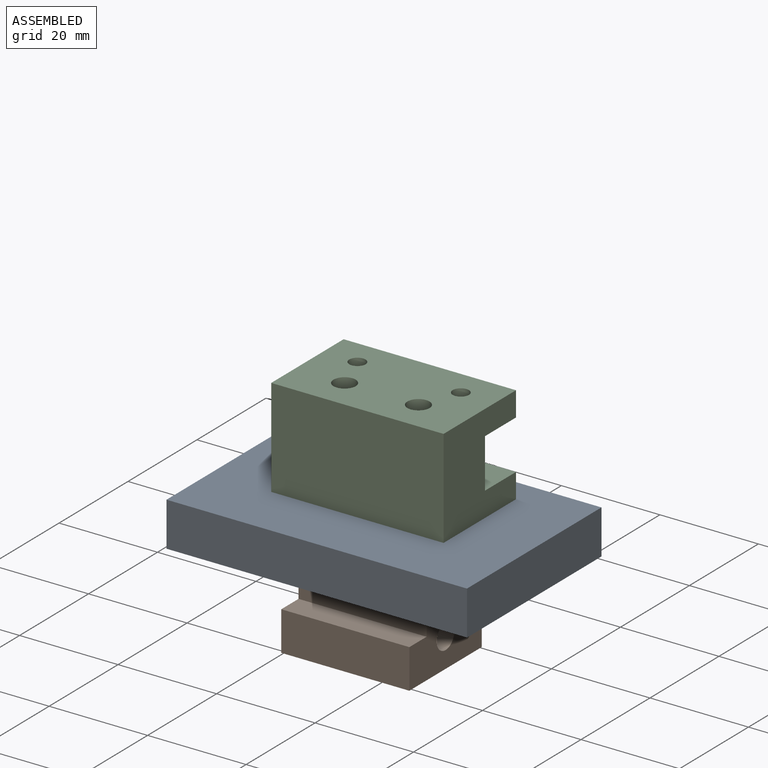
[diagram: assembled view]
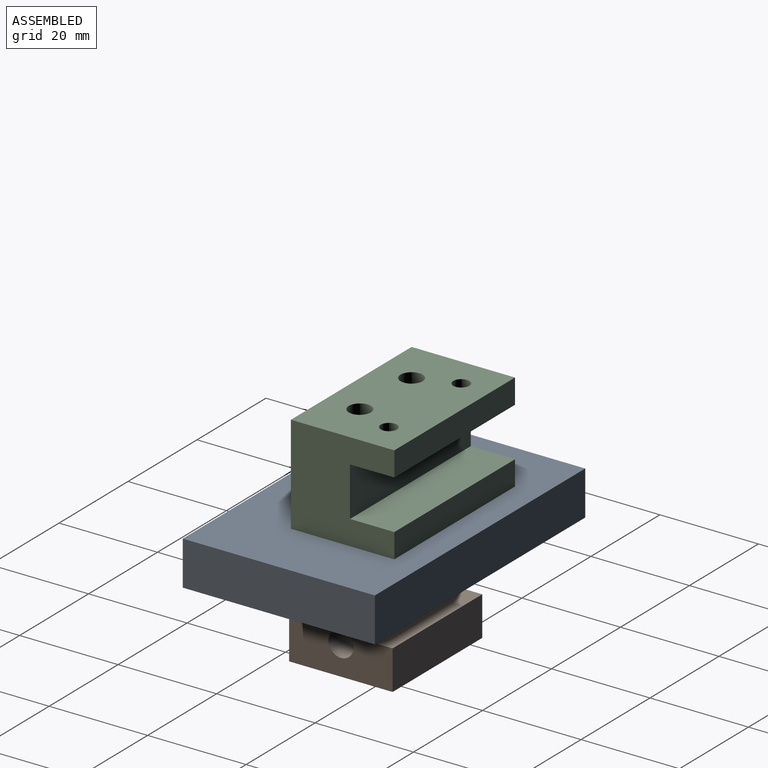
[diagram: assembled view, second angle]
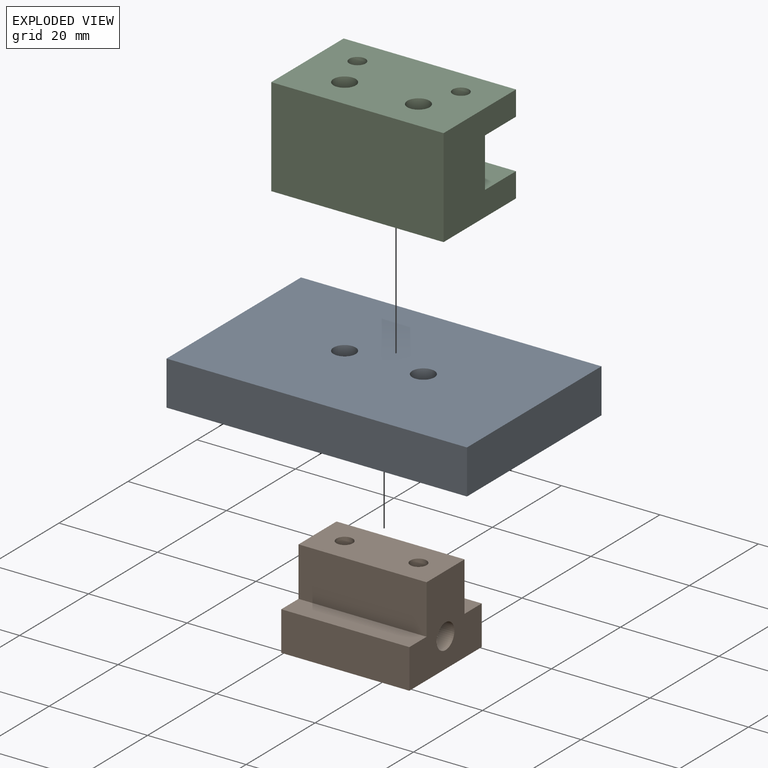
[diagram: exploded view]
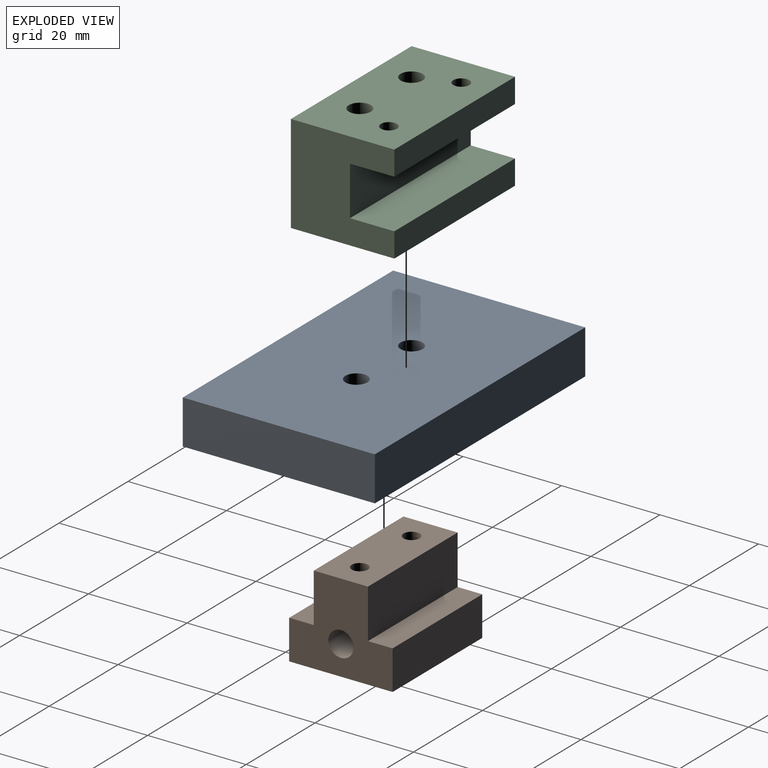
[diagram: exploded view, second angle]
ASSEMBLY  parts=3 mates=2
PART A: 8 faces, bbox 61x39x9 mm
  f0: plane 39x9mm, normal (-1,0,0), area 351mm2, adj f1,f3,f4,f5
  f1: plane 61x9mm, normal (0,-1,0), area 549mm2, adj f0,f2,f4,f5
  f2: plane 39x9mm, normal (1,0,0), area 351mm2, adj f1,f3,f4,f5
  f3: plane 61x9mm, normal (0,1,0), area 549mm2, adj f0,f2,f4,f5
  f4: plane 61x39mm, normal (0,0,1), area 2347.2mm2, adj f0,f1,f2,f3,f6,f7
  f5: plane 61x39mm, normal (0,0,-1), area 2347.2mm2, adj f0,f1,f2,f3,f6,f7
  f6: cylinder r=2.25mm len=9mm, axis (0,0,1), area 127.2mm2, adj f4,f5
  f7: cylinder r=2.25mm len=9mm, axis (0,0,1), area 127.2mm2, adj f4,f5
PART B: 15 faces, bbox 26x21x18 mm
  f0: plane 21x18mm, normal (1,0,0), area 257.5mm2, adj f1,f3,f4,f5,f6,f7,f8,f9
  f1: plane 26x8mm, normal (0,1,0), area 208mm2, adj f0,f2,f5,f6
  f2: plane 21x18mm, normal (-1,0,0), area 257.5mm2, adj f1,f3,f4,f5,f6,f7,f8,f9
  f3: plane 26x8mm, normal (0,-1,0), area 208mm2, adj f0,f2,f5,f9
  f4: plane 26x11mm, normal (0,0,1), area 268.9mm2, adj f0,f2,f7,f8,f12,f14
  f5: plane 26x21mm, normal (0,0,-1), area 546mm2, adj f0,f1,f2,f3
  f6: plane 26x5mm, normal (0,0,1), area 130mm2, adj f0,f1,f2,f7
  f7: plane 26x10mm, normal (0,1,0), area 260mm2, adj f0,f2,f4,f6
  f8: plane 26x10mm, normal (0,-1,0), area 260mm2, adj f0,f2,f4,f9
  f9: plane 26x5mm, normal (0,0,1), area 130mm2, adj f0,f2,f3,f8
  f10: cylinder r=2.55mm len=26mm, axis (1,0,0), area 417mm2, adj f0,f2
  f11: cone r=1.65mm half-angle=59deg, axis (0,0,1), area 10mm2, adj f12
  f12: cylinder r=1.65mm len=8mm, axis (0,0,1), area 82.9mm2, adj f4,f11
  f13: cone r=1.65mm half-angle=59deg, axis (0,0,1), area 10mm2, adj f14
  f14: cylinder r=1.65mm len=8mm, axis (0,0,1), area 82.9mm2, adj f4,f13
PART C: 14 faces, bbox 35x21x20 mm
  f0: plane 35x21mm, normal (0,0,1), area 686.1mm2, adj f1,f2,f4,f5,f10,f11,f12,f13
  f1: plane 35x5mm, normal (0,1,0), area 175mm2, adj f0,f2,f4,f7
  f2: plane 21x20mm, normal (1,0,0), area 330mm2, adj f0,f1,f3,f5,f6,f7,f8,f9
  f3: plane 35x5mm, normal (0,1,0), area 175mm2, adj f2,f4,f6,f8
  f4: plane 21x20mm, normal (-1,0,0), area 330mm2, adj f0,f1,f3,f5,f6,f7,f8,f9
  f5: plane 35x20mm, normal (0,-1,0), area 700mm2, adj f0,f2,f4,f6
  f6: plane 35x21mm, normal (0,0,-1), area 703.2mm2, adj f2,f3,f4,f5,f12,f13
  f7: plane 35x9mm, normal (0,0,-1), area 297.9mm2, adj f1,f2,f4,f9,f10,f11
  f8: plane 35x9mm, normal (0,0,1), area 315mm2, adj f2,f3,f4,f9
  f9: plane 35x10mm, normal (0,1,0), area 350mm2, adj f2,f4,f7,f8
  f10: cylinder r=1.65mm len=5mm, axis (0,0,1), area 51.8mm2, adj f0,f7
  f11: cylinder r=1.65mm len=5mm, axis (0,0,1), area 51.8mm2, adj f0,f7
  f12: cylinder r=2.25mm len=20mm, axis (0,0,1), area 282.7mm2, adj f0,f6
  f13: cylinder r=2.25mm len=20mm, axis (0,0,1), area 282.7mm2, adj f0,f6
PLACE A t=(0,0,-9)mm fixed
PLACE B rot(axis=(0,0,1),180deg) t=(-0.5,0,-27)mm
PLACE C t=(-0.5,3.5,0)mm
MATE fastened C.f13 <-> A.f6  axis (0,0,-1) through (-8,0,0)mm
MATE fastened B.f13 <-> A.f6  axis (0,0,1) through (-8,0,-9)mm
